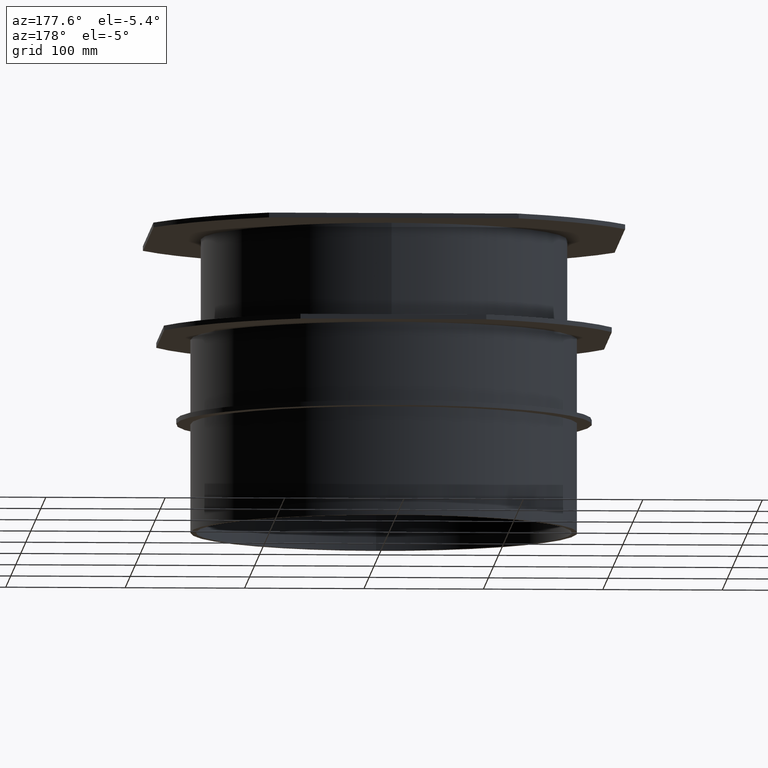
[diagram: clean part render]
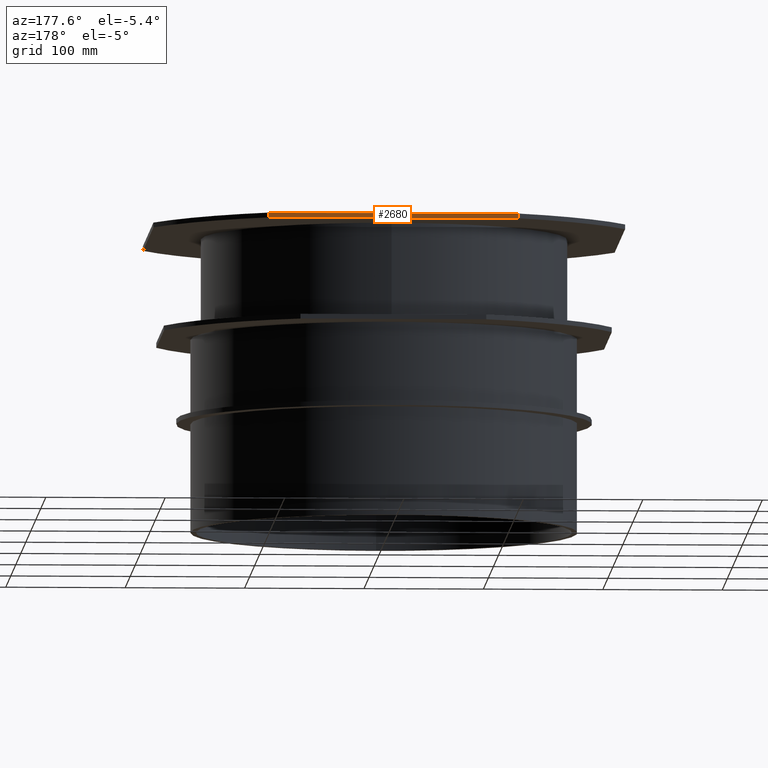
[diagram: same view with one face highlighted and labeled with its STEP entity id]
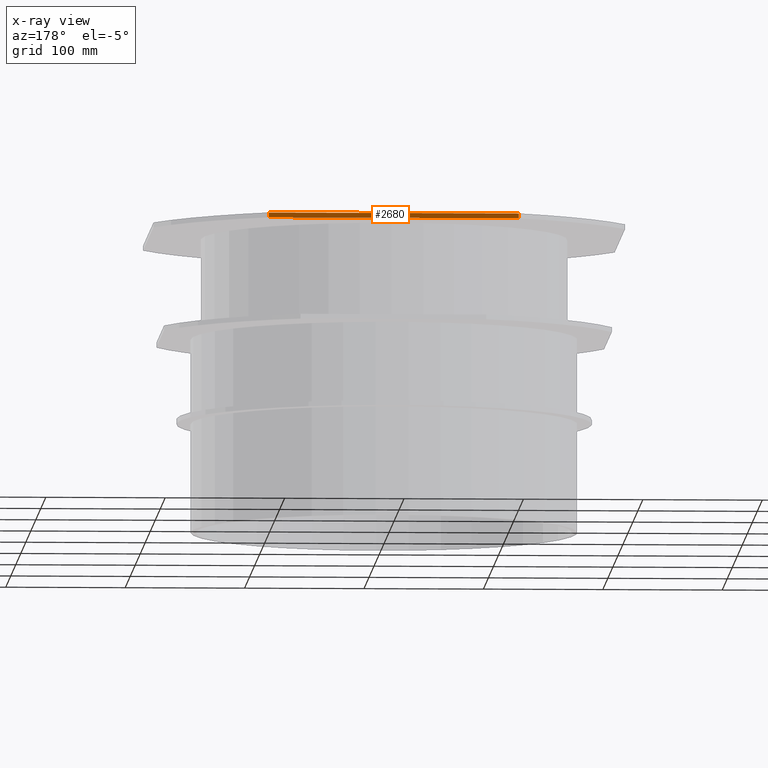
[diagram: x-ray of the same camera — body ghosted, the highlighted face saturated]
A machine part, auxiliary view. The second image highlights one B-rep face of the part: STEP entity #2680.
The next image is the same camera in x-ray: the body ghosted, the highlighted face saturated — about 0% of this face is hidden behind the body in this view.
In plain terms, the highlighted planar face has unit normal (-0, -1, -0).
Its self-contained STEP definition (entity closure, byte-faithful):
#301=FACE_OUTER_BOUND('',#467,.T.);
#467=EDGE_LOOP('',(#2380,#2381,#2382,#2383));
#769=LINE('',#4729,#1045);
#777=LINE('',#4754,#1053);
#778=LINE('',#4755,#1054);
#779=LINE('',#4756,#1055);
#1045=VECTOR('',#3336,10.);
#1053=VECTOR('',#3360,10.);
#1054=VECTOR('',#3361,10.);
#1055=VECTOR('',#3362,10.);
#1302=VERTEX_POINT('',#4726);
#1303=VERTEX_POINT('',#4728);
#1311=VERTEX_POINT('',#4752);
#1312=VERTEX_POINT('',#4753);
#1665=EDGE_CURVE('',#1302,#1303,#769,.T.);
#1676=EDGE_CURVE('',#1311,#1312,#777,.T.);
#1677=EDGE_CURVE('',#1303,#1311,#778,.T.);
#1678=EDGE_CURVE('',#1312,#1302,#779,.T.);
#2380=ORIENTED_EDGE('',*,*,#1676,.F.);
#2381=ORIENTED_EDGE('',*,*,#1677,.F.);
#2382=ORIENTED_EDGE('',*,*,#1665,.F.);
#2383=ORIENTED_EDGE('',*,*,#1678,.F.);
#2542=PLANE('',#2835);
#2680=ADVANCED_FACE('',(#301),#2542,.F.);
#2835=AXIS2_PLACEMENT_3D('',#4751,#3358,#3359);
#3336=DIRECTION('',(-1.,1.60812264967664E-16,2.22044604925031E-16));
#3358=DIRECTION('center_axis',(-1.60812264967664E-16,-1.,-1.35963107344689E-32));
#3359=DIRECTION('ref_axis',(-1.,1.60812264967664E-16,2.22044604925031E-16));
#3360=DIRECTION('',(1.,-1.60812264967664E-16,-2.22044604925031E-16));
#3361=DIRECTION('',(-2.22044604925031E-16,4.93038065763132E-32,-1.));
#3362=DIRECTION('',(2.22044604925031E-16,-4.93038065763132E-32,1.));
#4726=CARTESIAN_POINT('',(104.623133197204,197.5,-1.77635683940025E-14));
#4728=CARTESIAN_POINT('',(-104.623133197204,197.5,1.77635683940025E-14));
#4729=CARTESIAN_POINT('',(52.3115665986022,197.5,-1.77635683940025E-14));
#4751=CARTESIAN_POINT('Origin',(104.623133197204,197.5,-1.77635683940025E-14));
#4752=CARTESIAN_POINT('',(-104.623133197204,197.5,-3.99999999999997));
#4753=CARTESIAN_POINT('',(104.623133197204,197.5,-4.));
#4754=CARTESIAN_POINT('',(52.3115665986022,197.5,-4.));
#4755=CARTESIAN_POINT('',(-104.623133197204,197.5,1.77635683940025E-14));
#4756=CARTESIAN_POINT('',(104.623133197205,197.5,-1.77635683940025E-14));